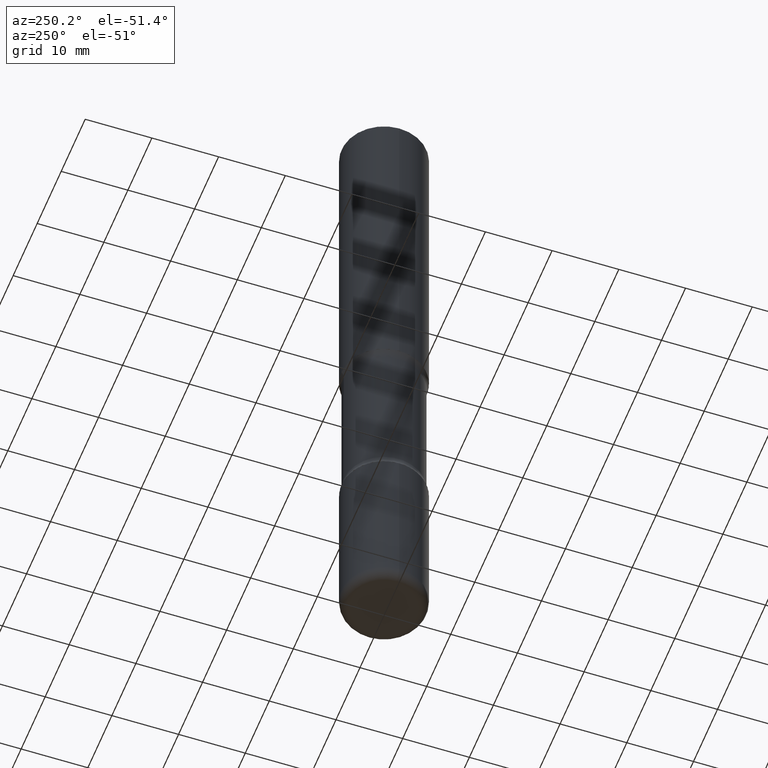
[diagram: clean part render]
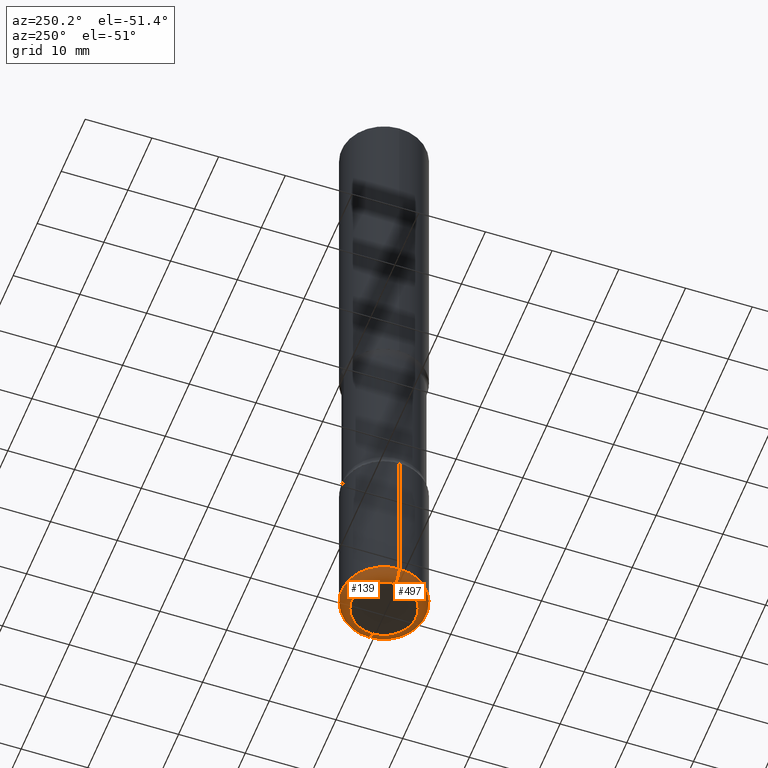
[diagram: same view with one multi-face feature highlighted, each face labeled with its STEP entity id]
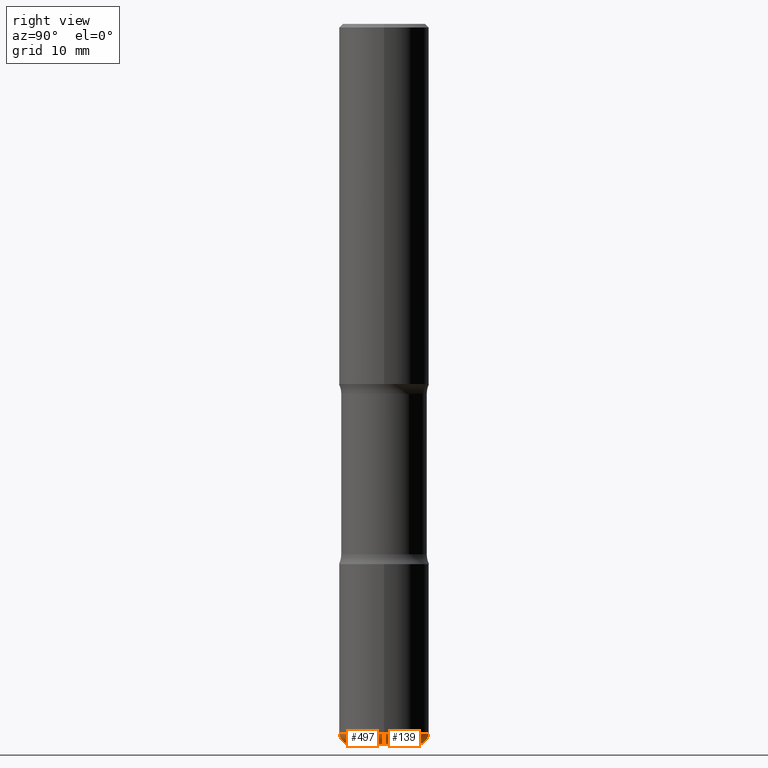
[diagram: same view with one multi-face feature highlighted, each face labeled with its STEP entity id]
A machine part, auxiliary view. The highlighted faces form ONE feature: a constant-radius fillet chain: 2 tangent blend faces with common blend radius 1.524 mm. The faces share edges in the B-rep.
A second angle (right view) of the same feature is appended — it is thin or edge-on in the first view.
Their STEP definitions:
[1] entity #497 (Torus):
#32 = CARTESIAN_POINT ( 'NONE',  ( 0.1900000000000003630, -1.508319938380238721E-14, -3.939999999999999947 ) ) ;
#44 = CARTESIAN_POINT ( 'NONE',  ( -0.1900000000000003630, -1.240640527709780088E-14, -3.939999999999999947 ) ) ;
#58 = AXIS2_PLACEMENT_3D ( 'NONE', #484, #449, #541 ) ;
#74 = TOROIDAL_SURFACE ( 'NONE', #385, 0.1900000000000003630, 0.05999999999999995615 ) ;
#81 = AXIS2_PLACEMENT_3D ( 'NONE', #44, #560, #127 ) ;
#86 = DIRECTION ( 'NONE',  ( -2.445468806185136597E-29, 3.491481338843145583E-15, 1.000000000000000000 ) ) ;
#93 = EDGE_CURVE ( 'NONE', #210, #546, #467, .T. ) ;
#96 = AXIS2_PLACEMENT_3D ( 'NONE', #477, #86, #538 ) ;
#100 = DIRECTION ( 'NONE',  ( 1.000000000000000000, -6.982962677686269077E-15, 4.883557194083113462E-29 ) ) ;
#109 = EDGE_CURVE ( 'NONE', #485, #423, #413, .T. ) ;
#111 = DIRECTION ( 'NONE',  ( 1.000000000000000000, -6.982962677686270655E-15, 0.000000000000000000 ) ) ;
#114 = CARTESIAN_POINT ( 'NONE',  ( -0.1900000000000003630, -1.229798689653506559E-14, -4.000000000000000000 ) ) ;
#127 = DIRECTION ( 'NONE',  ( -1.000000000000000000, 7.105427357600993970E-15, 0.000000000000000000 ) ) ;
#128 = CIRCLE ( 'NONE', #58, 0.1900000000000003630 ) ;
#155 = EDGE_LOOP ( 'NONE', ( #361, #159, #292, #238 ) ) ;
#157 = CARTESIAN_POINT ( 'NONE',  ( -0.2500000000000003331, -1.198007963564174197E-14, -3.939999999999999947 ) ) ;
#159 = ORIENTED_EDGE ( 'NONE', *, *, #454, .T. ) ;
#160 = DIRECTION ( 'NONE',  ( -6.982962677686266711E-15, -1.000000000000000000, 3.491481338843145583E-15 ) ) ;
#184 = CARTESIAN_POINT ( 'NONE',  ( 0.2500000000000003331, -1.550217714446356385E-14, -3.939999999999999947 ) ) ;
#194 = CARTESIAN_POINT ( 'NONE',  ( 9.635147096369438236E-29, -1.375643647504199401E-14, -3.939999999999999947 ) ) ;
#210 = VERTEX_POINT ( 'NONE', #114 ) ;
#231 = DIRECTION ( 'NONE',  ( -2.445468806185136597E-29, 3.491481338843145583E-15, 1.000000000000000000 ) ) ;
#238 = ORIENTED_EDGE ( 'NONE', *, *, #395, .F. ) ;
#277 = FACE_OUTER_BOUND ( 'NONE', #155, .T. ) ;
#292 = ORIENTED_EDGE ( 'NONE', *, *, #109, .T. ) ;
#322 = CIRCLE ( 'NONE', #96, 0.2500000000000003886 ) ;
#361 = ORIENTED_EDGE ( 'NONE', *, *, #93, .F. ) ;
#385 = AXIS2_PLACEMENT_3D ( 'NONE', #194, #231, #100 ) ;
#395 = EDGE_CURVE ( 'NONE', #546, #423, #322, .T. ) ;
#413 = CIRCLE ( 'NONE', #488, 0.05999999999999997696 ) ;
#423 = VERTEX_POINT ( 'NONE', #184 ) ;
#445 = CARTESIAN_POINT ( 'NONE',  ( 0.1900000000000003630, -1.529268826413297711E-14, -4.000000000000000000 ) ) ;
#449 = DIRECTION ( 'NONE',  ( -2.445468806185136597E-29, 3.491481338843145583E-15, 1.000000000000000000 ) ) ;
#454 = EDGE_CURVE ( 'NONE', #210, #485, #128, .T. ) ;
#467 = CIRCLE ( 'NONE', #81, 0.05999999999999997696 ) ;
#477 = CARTESIAN_POINT ( 'NONE',  ( 9.635147096369438236E-29, -1.375643647504199401E-14, -3.939999999999999947 ) ) ;
#484 = CARTESIAN_POINT ( 'NONE',  ( 9.781875224740546387E-29, -1.396592535537258233E-14, -4.000000000000000000 ) ) ;
#485 = VERTEX_POINT ( 'NONE', #445 ) ;
#488 = AXIS2_PLACEMENT_3D ( 'NONE', #32, #160, #111 ) ;
#497 = ADVANCED_FACE ( 'NONE', ( #277 ), #74, .T. ) ;
#538 = DIRECTION ( 'NONE',  ( 1.000000000000000000, -6.982962677686267499E-15, 0.000000000000000000 ) ) ;
#541 = DIRECTION ( 'NONE',  ( 1.000000000000000000, -6.982962677686269077E-15, 0.000000000000000000 ) ) ;
#546 = VERTEX_POINT ( 'NONE', #157 ) ;
#560 = DIRECTION ( 'NONE',  ( 7.105427357601001859E-15, 1.000000000000000000, -3.491481338843145583E-15 ) ) ;
[2] entity #139 (Torus):
#32 = CARTESIAN_POINT ( 'NONE',  ( 0.1900000000000003630, -1.508319938380238721E-14, -3.939999999999999947 ) ) ;
#44 = CARTESIAN_POINT ( 'NONE',  ( -0.1900000000000003630, -1.240640527709780088E-14, -3.939999999999999947 ) ) ;
#50 = ORIENTED_EDGE ( 'NONE', *, *, #173, .F. ) ;
#65 = AXIS2_PLACEMENT_3D ( 'NONE', #121, #465, #294 ) ;
#81 = AXIS2_PLACEMENT_3D ( 'NONE', #44, #560, #127 ) ;
#93 = EDGE_CURVE ( 'NONE', #210, #546, #467, .T. ) ;
#109 = EDGE_CURVE ( 'NONE', #485, #423, #413, .T. ) ;
#111 = DIRECTION ( 'NONE',  ( 1.000000000000000000, -6.982962677686270655E-15, 0.000000000000000000 ) ) ;
#114 = CARTESIAN_POINT ( 'NONE',  ( -0.1900000000000003630, -1.229798689653506559E-14, -4.000000000000000000 ) ) ;
#121 = CARTESIAN_POINT ( 'NONE',  ( 9.635147096369438236E-29, -1.375643647504199401E-14, -3.939999999999999947 ) ) ;
#127 = DIRECTION ( 'NONE',  ( -1.000000000000000000, 7.105427357600993970E-15, 0.000000000000000000 ) ) ;
#133 = CARTESIAN_POINT ( 'NONE',  ( 9.781875224740546387E-29, -1.396592535537258233E-14, -4.000000000000000000 ) ) ;
#136 = CIRCLE ( 'NONE', #342, 0.1900000000000003630 ) ;
#139 = ADVANCED_FACE ( 'NONE', ( #297 ), #269, .T. ) ;
#157 = CARTESIAN_POINT ( 'NONE',  ( -0.2500000000000003331, -1.198007963564174197E-14, -3.939999999999999947 ) ) ;
#160 = DIRECTION ( 'NONE',  ( -6.982962677686266711E-15, -1.000000000000000000, 3.491481338843145583E-15 ) ) ;
#173 = EDGE_CURVE ( 'NONE', #423, #546, #197, .T. ) ;
#184 = CARTESIAN_POINT ( 'NONE',  ( 0.2500000000000003331, -1.550217714446356385E-14, -3.939999999999999947 ) ) ;
#197 = CIRCLE ( 'NONE', #251, 0.2500000000000003886 ) ;
#210 = VERTEX_POINT ( 'NONE', #114 ) ;
#211 = DIRECTION ( 'NONE',  ( -2.445468806185136597E-29, 3.491481338843145583E-15, 1.000000000000000000 ) ) ;
#251 = AXIS2_PLACEMENT_3D ( 'NONE', #383, #284, #462 ) ;
#269 = TOROIDAL_SURFACE ( 'NONE', #65, 0.1900000000000003630, 0.05999999999999995615 ) ;
#284 = DIRECTION ( 'NONE',  ( -2.445468806185136597E-29, 3.491481338843145583E-15, 1.000000000000000000 ) ) ;
#291 = EDGE_LOOP ( 'NONE', ( #475, #371, #50, #517 ) ) ;
#294 = DIRECTION ( 'NONE',  ( 1.000000000000000000, -6.982962677686269077E-15, 4.883557194083113462E-29 ) ) ;
#295 = EDGE_CURVE ( 'NONE', #485, #210, #136, .T. ) ;
#297 = FACE_OUTER_BOUND ( 'NONE', #291, .T. ) ;
#342 = AXIS2_PLACEMENT_3D ( 'NONE', #133, #211, #345 ) ;
#345 = DIRECTION ( 'NONE',  ( 1.000000000000000000, -6.982962677686269077E-15, 0.000000000000000000 ) ) ;
#371 = ORIENTED_EDGE ( 'NONE', *, *, #93, .T. ) ;
#383 = CARTESIAN_POINT ( 'NONE',  ( 9.635147096369438236E-29, -1.375643647504199401E-14, -3.939999999999999947 ) ) ;
#413 = CIRCLE ( 'NONE', #488, 0.05999999999999997696 ) ;
#423 = VERTEX_POINT ( 'NONE', #184 ) ;
#445 = CARTESIAN_POINT ( 'NONE',  ( 0.1900000000000003630, -1.529268826413297711E-14, -4.000000000000000000 ) ) ;
#462 = DIRECTION ( 'NONE',  ( 1.000000000000000000, -6.982962677686267499E-15, 0.000000000000000000 ) ) ;
#465 = DIRECTION ( 'NONE',  ( -2.445468806185136597E-29, 3.491481338843145583E-15, 1.000000000000000000 ) ) ;
#467 = CIRCLE ( 'NONE', #81, 0.05999999999999997696 ) ;
#475 = ORIENTED_EDGE ( 'NONE', *, *, #295, .T. ) ;
#485 = VERTEX_POINT ( 'NONE', #445 ) ;
#488 = AXIS2_PLACEMENT_3D ( 'NONE', #32, #160, #111 ) ;
#517 = ORIENTED_EDGE ( 'NONE', *, *, #109, .F. ) ;
#546 = VERTEX_POINT ( 'NONE', #157 ) ;
#560 = DIRECTION ( 'NONE',  ( 7.105427357601001859E-15, 1.000000000000000000, -3.491481338843145583E-15 ) ) ;